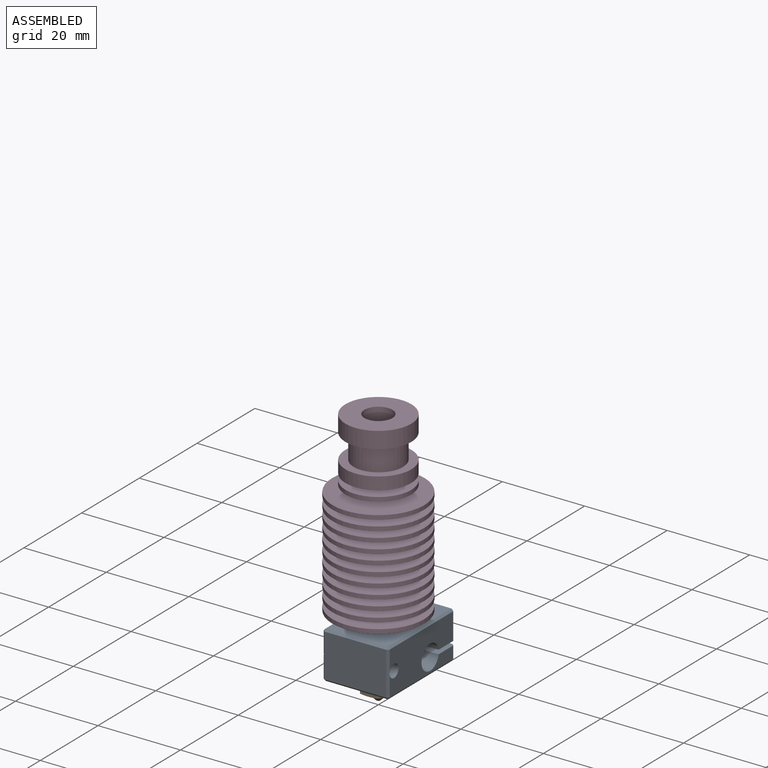
[diagram: assembled view]
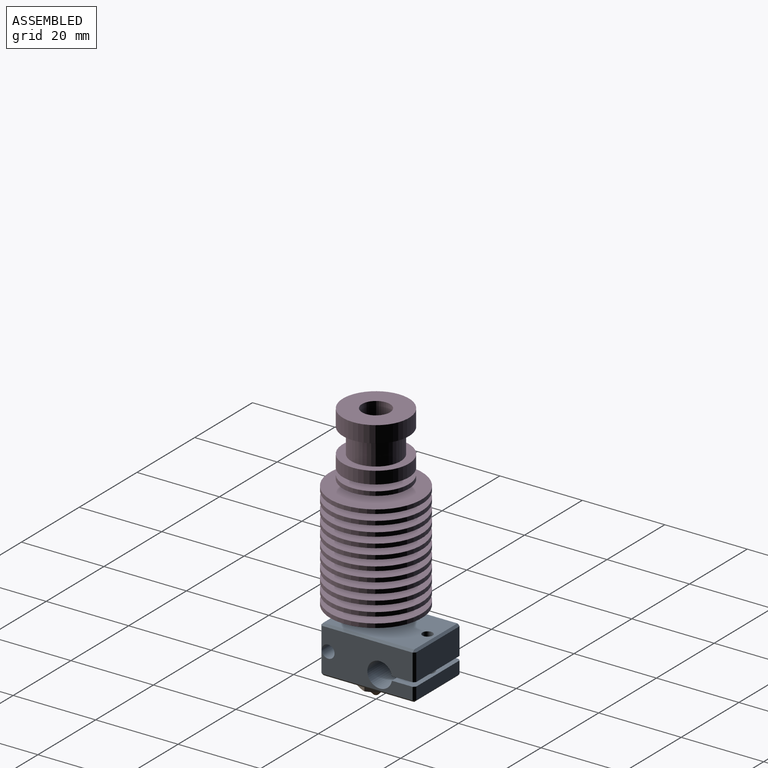
[diagram: assembled view, second angle]
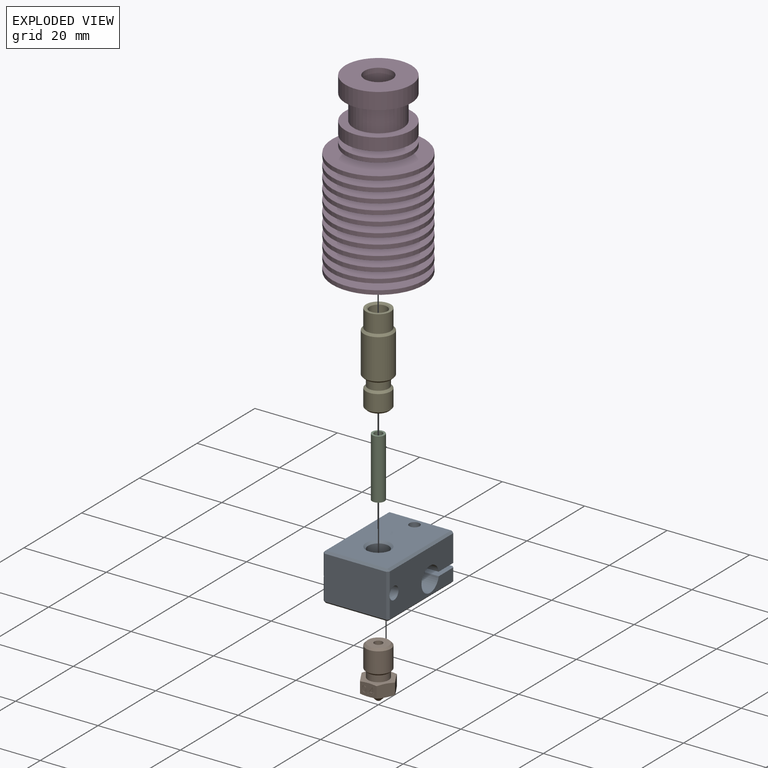
[diagram: exploded view]
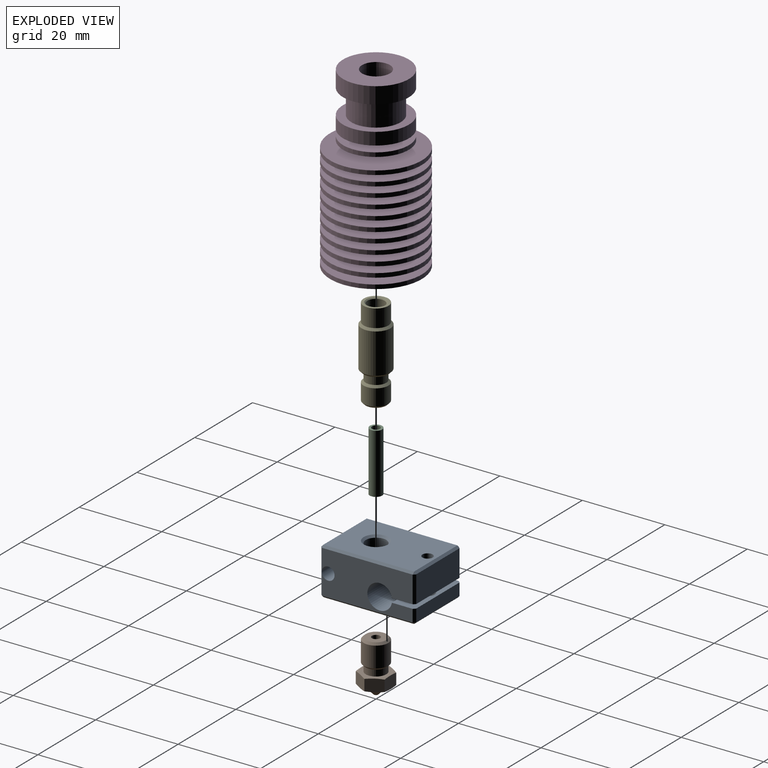
[diagram: exploded view, second angle]
ASSEMBLY  parts=5 mates=4
PART A: 39 faces, bbox 23x16x11.5 mm
  f0: cylinder r=1.55mm len=16mm, axis (0,-1,0), area 150.3mm2, adj f2,f3,f14,f22,f36
  f1: plane 15x6.5mm, normal (-1,0,0), area 97.5mm2, adj f10,f16,f24,f25
  f2: plane 22x10.5mm, normal (0,-1,0), area 190.2mm2, adj f0,f8,f9,f10,f15,f16,f21,f22
  f3: plane 22x10.5mm, normal (0,1,0), area 190.2mm2, adj f0,f8,f9,f10,f19,f25,f30,f33
  f4: plane 22x15mm, normal (0,0,-1), area 287.7mm2, adj f13,f14,f20,f21,f30,f31,f37
  f5: plane 15x10.5mm, normal (1,0,0), area 157.5mm2, adj f22,f31,f32,f36
  f6: plane 22x15mm, normal (0,0,1), area 296.8mm2, adj f12,f23,f24,f32,f33,f38
  f7: plane 15x3mm, normal (-1,0,0), area 45mm2, adj f8,f15,f19,f20
  f8: plane 16x5.54mm, normal (0,0,1), area 79.3mm2, adj f2,f3,f7,f9,f13,f15,f19
  f9: cylinder r=3mm len=16mm, axis (0,-1,0), area 285.5mm2, adj f2,f3,f8,f10
  f10: plane 16x5.54mm, normal (0,0,-1), area 83.5mm2, adj f1,f2,f3,f9,f12,f16,f25
  f11: cylinder r=2.5mm len=10.5mm, axis (0,0,1), area 164.9mm2, adj f37,f38
  f12: cylinder r=1.25mm len=7mm, axis (0,0,1), area 55mm2, adj f6,f10
  f13: cylinder r=1.7mm len=3.5mm, axis (0,0,-1), area 37.4mm2, adj f4,f8
  f14: cylinder r=1.25mm len=4.83mm, axis (0,0,-1), area 35.3mm2, adj f0,f4
  f15: plane 3x0.5mm, normal (-0.71,-0.71,0), area 2.1mm2, adj f2,f7,f8,f17
  f16: plane 6.5x0.5mm, normal (-0.71,-0.71,0), area 4.6mm2, adj f1,f2,f10,f18
  f17: plane 0.5x0.5mm, normal (-0.58,-0.58,-0.58), area 0.2mm2, adj f15,f20,f21
  f18: plane 0.5x0.5mm, normal (-0.58,-0.58,0.58), area 0.2mm2, adj f16,f23,f24
  f19: plane 3x0.5mm, normal (-0.71,0.71,0), area 2.1mm2, adj f3,f7,f8,f26
  f20: plane 15x0.5mm, normal (-0.71,0,-0.71), area 10.6mm2, adj f4,f7,f17,f26
  f21: plane 22x0.5mm, normal (0,-0.71,-0.71), area 15.6mm2, adj f2,f4,f17,f27
  f22: plane 10.5x0.5mm, normal (0.71,-0.71,0), area 7.4mm2, adj f0,f2,f5,f27,f28
  f23: plane 22x0.5mm, normal (0,-0.71,0.71), area 15.6mm2, adj f2,f6,f18,f28
  f24: plane 15x0.5mm, normal (-0.71,0,0.71), area 10.6mm2, adj f1,f6,f18,f29
  f25: plane 6.5x0.5mm, normal (-0.71,0.71,0), area 4.6mm2, adj f1,f3,f10,f29
  f26: plane 0.5x0.5mm, normal (-0.58,0.58,-0.58), area 0.2mm2, adj f19,f20,f30
  f27: plane 0.5x0.5mm, normal (0.58,-0.58,-0.58), area 0.2mm2, adj f21,f22,f31
  f28: plane 0.5x0.5mm, normal (0.58,-0.58,0.58), area 0.2mm2, adj f22,f23,f32
  f29: plane 0.5x0.5mm, normal (-0.58,0.58,0.58), area 0.2mm2, adj f24,f25,f33
  f30: plane 22x0.5mm, normal (0,0.71,-0.71), area 15.6mm2, adj f3,f4,f26,f34
  f31: plane 15x0.5mm, normal (0.71,0,-0.71), area 10.6mm2, adj f4,f5,f27,f34
  f32: plane 15x0.5mm, normal (0.71,0,0.71), area 10.6mm2, adj f5,f6,f28,f35
  f33: plane 22x0.5mm, normal (0,0.71,0.71), area 15.6mm2, adj f3,f6,f29,f35
  f34: plane 0.5x0.5mm, normal (0.58,0.58,-0.58), area 0.2mm2, adj f30,f31,f36
  f35: plane 0.5x0.5mm, normal (0.58,0.58,0.58), area 0.2mm2, adj f32,f33,f36
  f36: plane 10.5x0.5mm, normal (0.71,0.71,0), area 7.4mm2, adj f0,f3,f5,f34,f35
  f37: cone r=3mm half-angle=45deg, axis (0,0,-1), area 12.2mm2, adj f4,f11
  f38: cone r=2.5mm half-angle=45deg, axis (0,0,1), area 12.2mm2, adj f6,f11
PART B: 76 faces, bbox 8.4x8.4x12.8 mm
  f0: plane 4.35x3.31mm, normal (0,-1,0), area 9.7mm2, adj f21,f22,f23,f24,f28,f29,f30,f31
  f1: plane 7x7mm, normal (0,0,-1), area 18.8mm2, adj f7,f15,f16,f18,f20,f22,f24
  f2: plane 5x5mm, normal (0,0,1), area 16.5mm2, adj f8,f11
  f3: cylinder r=3mm len=6mm, axis (0,0,1), area 94.2mm2, adj f11,f12
  f4: cylinder r=2.5mm len=5mm, axis (0,0,1), area 23.6mm2, adj f5,f12
  f5: plane 7x7mm, normal (0,0,1), area 18.8mm2, adj f4,f13,f14,f17,f19,f21,f23
  f6: plane 1x1mm, normal (0,0,-1), area 0.7mm2, adj f7,f10
  f7: cone r=0.5mm half-angle=45deg, axis (0,0,1), area 26.7mm2, adj f1,f6
  f8: cylinder r=1mm len=10.51mm, axis (0,0,-1), area 66.1mm2, adj f2,f9
  f9: cone r=1mm half-angle=30deg, axis (0,0,1), area 6mm2, adj f8,f10
  f10: cylinder r=0.2mm len=0.6mm, axis (0,0,-1), area 0.8mm2, adj f6,f9
  f11: cone r=2.5mm half-angle=45deg, axis (0,0,-1), area 12.2mm2, adj f2,f3
  f12: cone r=3mm half-angle=45deg, axis (0,0,1), area 12.2mm2, adj f3,f4
  f13: cone r=4.04mm half-angle=75deg, axis (0,0,-1), area 1.1mm2, adj f5,f25,f29
  f14: cone r=4.04mm half-angle=75deg, axis (0,0,-1), area 1.1mm2, adj f5,f25,f26
  f15: cone r=3.5mm half-angle=75deg, axis (0,0,1), area 1.1mm2, adj f1,f25,f26
  f16: cone r=3.5mm half-angle=75deg, axis (0,0,1), area 1.1mm2, adj f1,f25,f29
  f17: cone r=4.04mm half-angle=75deg, axis (0,0,-1), area 1.1mm2, adj f5,f26,f27
  f18: cone r=3.5mm half-angle=75deg, axis (0,0,1), area 1.1mm2, adj f1,f26,f27
  f19: cone r=4.04mm half-angle=75deg, axis (0,0,-1), area 1.1mm2, adj f5,f27,f28
  f20: cone r=3.5mm half-angle=75deg, axis (0,0,1), area 1.1mm2, adj f1,f27,f28
  f21: cone r=4.04mm half-angle=75deg, axis (0,0,-1), area 1.1mm2, adj f0,f5,f28
  f22: cone r=3.5mm half-angle=75deg, axis (0,0,1), area 1.1mm2, adj f0,f1,f28
  f23: cone r=4.04mm half-angle=75deg, axis (0,0,-1), area 1.1mm2, adj f0,f5,f29
  f24: cone r=3.5mm half-angle=75deg, axis (0,0,1), area 1.1mm2, adj f0,f1,f29
  f25: plane 3.8x3.3mm, normal (0.87,0.5,0), area 11.7mm2, adj f13,f14,f15,f16,f26,f29
  f26: plane 4.35x3.31mm, normal (0,1,0), area 11.7mm2, adj f14,f15,f17,f18,f25,f27
  f27: plane 3.8x3.3mm, normal (-0.87,0.5,0), area 11.7mm2, adj f17,f18,f19,f20,f26,f28
  f28: plane 3.8x3.3mm, normal (-0.87,-0.5,0), area 11.7mm2, adj f0,f19,f20,f21,f22,f27
  f29: plane 3.8x3.3mm, normal (0.87,-0.5,0), area 11.7mm2, adj f0,f13,f16,f23,f24,f25
  f30: extruded ~0.1x0.1mm, area 0mm2, adj f0,f31,f37,f38
  f31: extruded ~0.11x0.1mm, area 0mm2, adj f0,f30,f32,f38
  f32: extruded ~0.1x0.09mm, area 0mm2, adj f0,f31,f33,f38
  f33: extruded ~0.1x0.09mm, area 0mm2, adj f0,f32,f34,f38
  f34: extruded ~0.1x0.1mm, area 0mm2, adj f0,f33,f35,f38
  f35: extruded ~0.1x0.1mm, area 0mm2, adj f0,f34,f36,f38
  f36: extruded ~0.1x0.09mm, area 0mm2, adj f0,f35,f37,f38
  f37: extruded ~0.1x0.09mm, area 0mm2, adj f0,f30,f36,f38
  f38: plane 0.28x0.25mm, normal (0,-1,0), area 0.1mm2, adj f30,f31,f32,f33,f34,f35,f36,f37
  f39: extruded ~0.47x0.1mm, area 0mm2, adj f40,f54,f55,f74
  f40: extruded ~0.47x0.1mm, area 0mm2, adj f39,f41,f55,f74
  f41: extruded ~0.24x0.15mm, area 0mm2, adj f40,f42,f55,f74
  f42: extruded ~0.24x0.15mm, area 0mm2, adj f41,f43,f55,f74
  f43: extruded ~0.47x0.1mm, area 0mm2, adj f42,f44,f55,f74
  f44: extruded ~0.47x0.1mm, area 0mm2, adj f43,f45,f55,f74
  f45: extruded ~0.24x0.15mm, area 0mm2, adj f44,f54,f55,f74
  f46: extruded ~0.58x0.12mm, area 0.1mm2, adj f0,f47,f53,f55
  f47: extruded ~0.57x0.13mm, area 0.1mm2, adj f0,f46,f48,f55
  f48: extruded ~0.37x0.2mm, area 0mm2, adj f0,f47,f49,f55
  f49: extruded ~0.37x0.19mm, area 0mm2, adj f0,f48,f50,f55
  f50: extruded ~0.58x0.12mm, area 0.1mm2, adj f0,f49,f51,f55
  f51: extruded ~0.57x0.13mm, area 0.1mm2, adj f0,f50,f52,f55
  f52: extruded ~0.37x0.2mm, area 0mm2, adj f0,f51,f53,f55
  f53: extruded ~0.37x0.19mm, area 0mm2, adj f0,f46,f52,f55
  f54: extruded ~0.24x0.15mm, area 0mm2, adj f39,f45,f55,f74
  f55: plane 1.53x0.98mm, normal (0,-1,0), area 0.6mm2, adj f39,f40,f41,f42,f43,f44,f45,f46
  f56: plane 0.49x0.1mm, normal (1,0,0), area 0mm2, adj f57,f72,f73,f75
  f57: plane 0.55x0.1mm, normal (0,0,-1), area 0.1mm2, adj f56,f58,f73,f75
  f58: plane 0.66x0.47mm, normal (-0.82,0,0.58), area 0.1mm2, adj f57,f59,f73,f75
  f59: extruded ~0.16x0.1mm, area 0mm2, adj f58,f60,f73,f75
  f60: plane 0.1x0.01mm, normal (0,0,1), area 0mm2, adj f59,f72,f73,f75
  f61: plane 0.22x0.1mm, normal (0,0,1), area 0mm2, adj f0,f62,f71,f73
  f62: plane 0.15x0.1mm, normal (-1,0,0), area 0mm2, adj f0,f61,f63,f73
  f63: plane 0.22x0.1mm, normal (0,0,-1), area 0mm2, adj f0,f62,f64,f73
  f64: plane 1x0.1mm, normal (-1,0,0), area 0.1mm2, adj f0,f63,f65,f73
  f65: plane 0.18x0.1mm, normal (0,0,-1), area 0mm2, adj f0,f64,f66,f73
  f66: plane 1.01x0.71mm, normal (0.82,0,-0.57), area 0.1mm2, adj f0,f65,f67,f73
  f67: plane 0.15x0.1mm, normal (1,0,0), area 0mm2, adj f0,f66,f68,f73
  f68: plane 0.72x0.1mm, normal (0,0,1), area 0.1mm2, adj f0,f67,f69,f73
  f69: plane 0.34x0.1mm, normal (1,0,0), area 0mm2, adj f0,f68,f70,f73
  f70: plane 0.16x0.1mm, normal (0,0,1), area 0mm2, adj f0,f69,f71,f73
  f71: plane 0.34x0.1mm, normal (-1,0,0), area 0mm2, adj f0,f61,f70,f73
  f72: extruded ~0.33x0.1mm, area 0mm2, adj f56,f60,f73,f75
  f73: plane 1.5x1.11mm, normal (0,-1,0), area 0.5mm2, adj f56,f57,f58,f59,f60,f61,f62,f63
  f74: plane 1.24x0.64mm, normal (0,-1,0), area 0.7mm2, adj f39,f40,f41,f42,f43,f44,f45,f54
  f75: plane 0.82x0.56mm, normal (0,-1,0), area 0.2mm2, adj f56,f57,f58,f59,f60,f72
PART C: 4 faces, bbox 3x3x14.5 mm
  f0: cylinder r=1mm len=14.5mm, axis (0,0,-1), area 91.1mm2, adj f2,f3
  f1: cylinder r=1.5mm len=14.5mm, axis (0,0,-1), area 136.7mm2, adj f2,f3
  f2: plane 3x3mm, normal (0,0,1), area 3.9mm2, adj f0,f1
  f3: plane 3x3mm, normal (0,0,-1), area 3.9mm2, adj f0,f1
PART D: 60 faces, bbox 22.3x22.3x43 mm
  f0: cylinder r=2.1mm len=25.68mm, axis (0,0,-1), area 338.8mm2, adj f56,f58
  f1: plane 16x16mm, normal (0,0,1), area 164.7mm2, adj f2,f59
  f2: cylinder r=8mm len=16mm, axis (0,0,1), area 201.1mm2, adj f1,f3
  f3: plane 16x16mm, normal (0,0,-1), area 88mm2, adj f2,f4
  f4: cylinder r=6mm len=12mm, axis (0,0,1), area 226.2mm2, adj f3,f5
  f5: plane 16x16mm, normal (0,0,1), area 88mm2, adj f4,f6
  f6: cylinder r=8mm len=16mm, axis (0,0,1), area 150.8mm2, adj f5,f7
  f7: plane 16x16mm, normal (0,0,-1), area 150.8mm2, adj f6,f47
  f8: plane 22.3x22.3mm, normal (0,0,1), area 335.2mm2, adj f9,f55
  f9: cylinder r=11.15mm len=22.3mm, axis (0,0,-1), area 70.1mm2, adj f8,f10
  f10: plane 22.3x22.3mm, normal (0,0,-1), area 329.7mm2, adj f9,f11
  f11: cylinder r=4.4mm len=8.8mm, axis (0,0,-1), area 41.5mm2, adj f10,f12
  f12: plane 22.3x22.3mm, normal (0,0,1), area 329.7mm2, adj f11,f13
  f13: cylinder r=11.15mm len=22.3mm, axis (0,0,-1), area 70.1mm2, adj f12,f14
  f14: plane 22.3x22.3mm, normal (0,0,-1), area 324.1mm2, adj f13,f15
  f15: cylinder r=4.6mm len=9.2mm, axis (0,0,-1), area 43.4mm2, adj f14,f16
  f16: plane 22.3x22.3mm, normal (0,0,1), area 324.1mm2, adj f15,f17
  f17: cylinder r=11.15mm len=22.3mm, axis (0,0,-1), area 70.1mm2, adj f16,f18
  f18: plane 22.3x22.3mm, normal (0,0,-1), area 318.2mm2, adj f17,f19
  f19: cylinder r=4.8mm len=9.6mm, axis (0,0,-1), area 45.2mm2, adj f18,f20
  f20: plane 22.3x22.3mm, normal (0,0,1), area 318.2mm2, adj f19,f21
  f21: cylinder r=11.15mm len=22.3mm, axis (0,0,-1), area 70.1mm2, adj f20,f22
  f22: plane 22.3x22.3mm, normal (0,0,-1), area 312mm2, adj f21,f23
  f23: cylinder r=5mm len=10mm, axis (0,0,-1), area 47.1mm2, adj f22,f24
  f24: plane 22.3x22.3mm, normal (0,0,1), area 312mm2, adj f23,f25
  f25: cylinder r=11.15mm len=22.3mm, axis (0,0,-1), area 70.1mm2, adj f24,f26
  f26: plane 22.3x22.3mm, normal (0,0,-1), area 305.6mm2, adj f25,f27
  f27: cylinder r=5.2mm len=10.4mm, axis (0,0,-1), area 49mm2, adj f26,f28
  f28: plane 22.3x22.3mm, normal (0,0,1), area 305.6mm2, adj f27,f29
  f29: cylinder r=11.15mm len=22.3mm, axis (0,0,-1), area 70.1mm2, adj f28,f30
  f30: plane 22.3x22.3mm, normal (0,0,-1), area 299mm2, adj f29,f31
  f31: cylinder r=5.4mm len=10.8mm, axis (0,0,-1), area 50.9mm2, adj f30,f32
  f32: plane 22.3x22.3mm, normal (0,0,1), area 299mm2, adj f31,f33
  f33: cylinder r=11.15mm len=22.3mm, axis (0,0,-1), area 70.1mm2, adj f32,f34
  f34: plane 22.3x22.3mm, normal (0,0,-1), area 292.1mm2, adj f33,f35
  f35: cylinder r=5.6mm len=11.2mm, axis (0,0,-1), area 52.8mm2, adj f34,f36
  f36: plane 22.3x22.3mm, normal (0,0,1), area 292.1mm2, adj f35,f37
  f37: cylinder r=11.15mm len=22.3mm, axis (0,0,-1), area 70.1mm2, adj f36,f38
  f38: plane 22.3x22.3mm, normal (0,0,-1), area 284.9mm2, adj f37,f39
  f39: cylinder r=5.8mm len=11.6mm, axis (0,0,-1), area 54.7mm2, adj f38,f40
  f40: plane 22.3x22.3mm, normal (0,0,1), area 284.9mm2, adj f39,f41
  f41: cylinder r=11.15mm len=22.3mm, axis (0,0,-1), area 70.1mm2, adj f40,f42
  f42: plane 22.3x22.3mm, normal (0,0,-1), area 277.5mm2, adj f41,f43
  f43: cylinder r=6mm len=12mm, axis (0,0,-1), area 56.5mm2, adj f42,f44
  f44: plane 22.3x22.3mm, normal (0,0,1), area 277.5mm2, adj f43,f45
  f45: cylinder r=11.15mm len=22.3mm, axis (0,0,-1), area 70.1mm2, adj f44,f46
  f46: plane 22.3x22.3mm, normal (0,0,-1), area 362.3mm2, adj f45,f57
  f47: cylinder r=4mm len=8mm, axis (0,0,-1), area 37.7mm2, adj f7,f48
  f48: plane 16x16mm, normal (0,0,1), area 150.8mm2, adj f47,f49
  f49: cylinder r=8mm len=16mm, axis (0,0,-1), area 50.3mm2, adj f48,f50
  f50: plane 16x16mm, normal (0,0,-1), area 150.8mm2, adj f49,f51
  f51: cylinder r=4mm len=8mm, axis (0,0,-1), area 37.7mm2, adj f50,f52
  f52: plane 22.3x22.3mm, normal (0,0,1), area 340.3mm2, adj f51,f53
  f53: cylinder r=11.15mm len=22.3mm, axis (0,0,-1), area 70.1mm2, adj f52,f54
  f54: plane 22.3x22.3mm, normal (0,0,-1), area 335.2mm2, adj f53,f55
  f55: cylinder r=4.2mm len=8.4mm, axis (0,0,-1), area 39.6mm2, adj f8,f54
  f56: cone r=0mm half-angle=59deg, axis (0,0,-1), area 16.8mm2, adj f0,f57
  f57: cylinder r=3mm len=10mm, axis (0,0,-1), area 188.5mm2, adj f46,f56
  f58: cone r=0mm half-angle=59deg, axis (0,0,1), area 26.2mm2, adj f0,f59
  f59: cylinder r=3.4mm len=6.8mm, axis (0,0,1), area 128.2mm2, adj f1,f58
PART E: 18 faces, bbox 7x7x22 mm
  f0: cylinder r=1mm len=2.34mm, axis (0,0,1), area 14.7mm2, adj f8,f10
  f1: plane 5x5mm, normal (0,0,-1), area 9.5mm2, adj f13,f14
  f2: cylinder r=3mm len=6mm, axis (0,0,1), area 75.4mm2, adj f14,f15
  f3: cylinder r=2.5mm len=5mm, axis (0,0,1), area 31.4mm2, adj f4,f15
  f4: plane 6x6mm, normal (0,0,-1), area 8.6mm2, adj f3,f16
  f5: cylinder r=3.5mm len=9.7mm, axis (0,0,1), area 213.3mm2, adj f16,f17
  f6: cylinder r=3mm len=6mm, axis (0,0,1), area 81.1mm2, adj f7,f17
  f7: plane 6x6mm, normal (0,0,1), area 10.9mm2, adj f6,f12
  f8: cone r=0mm half-angle=59deg, axis (0,0,1), area 12.5mm2, adj f0,f9
  f9: cylinder r=2.1mm len=4.25mm, axis (0,0,1), area 56.1mm2, adj f8,f12
  f10: plane 3.1x3.1mm, normal (0,0,-1), area 4.4mm2, adj f0,f11
  f11: cylinder r=1.55mm len=14.25mm, axis (0,0,-1), area 138.8mm2, adj f10,f13
  f12: cone r=2.1mm half-angle=45deg, axis (0,0,1), area 4.9mm2, adj f7,f9
  f13: cone r=1.55mm half-angle=45deg, axis (0,0,-1), area 3.7mm2, adj f1,f11
  f14: cone r=3mm half-angle=45deg, axis (0,0,1), area 12.2mm2, adj f1,f2
  f15: cone r=2.5mm half-angle=45deg, axis (0,0,-1), area 12.2mm2, adj f2,f3
  f16: cone r=3.5mm half-angle=45deg, axis (0,0,1), area 14.4mm2, adj f4,f5
  f17: cone r=3mm half-angle=45deg, axis (0,0,-1), area 14.4mm2, adj f5,f6
PLACE A rot(axis=(0,0,-1),90deg) t=(0,-8,-57.66)mm
PLACE B t=(0,0,-57.66)mm
PLACE C t=(0,0,-50.16)mm
PLACE D at identity
PLACE E t=(0,0,-50.16)mm
MATE fastened E.f12 <-> D.f0  axis (0,0,1) through (0,0,-32.46)mm
MATE fastened A.f37 <-> B.f3  axis (0,0,-1) through (0,0,-57.66)mm
MATE fastened B.f3 <-> C.f0  axis (0,0,1) through (0,0,-50.16)mm
MATE fastened C.f1 <-> E.f11  axis (0,0,1) through (0,0,-35.66)mm
